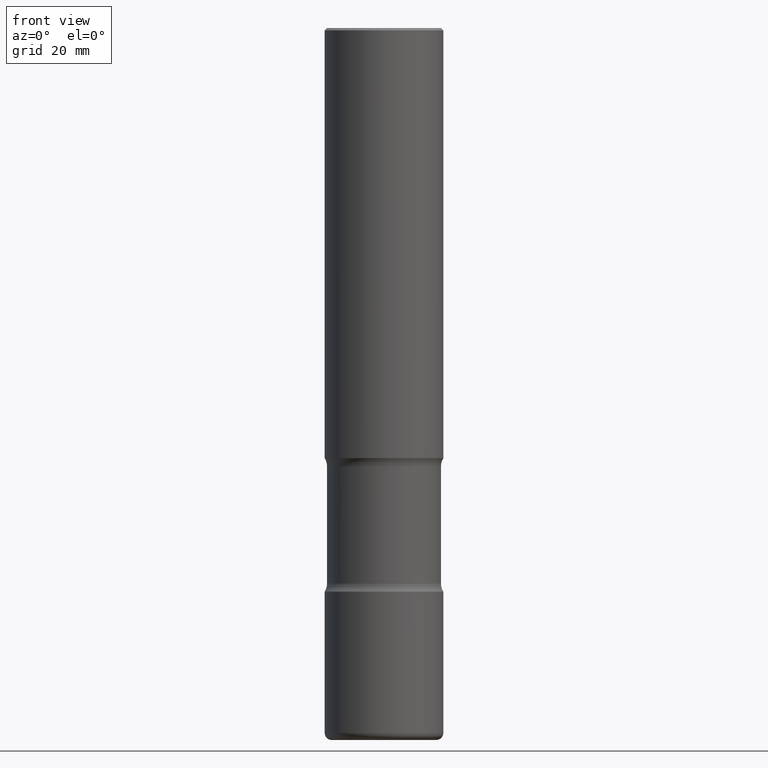
[diagram: clean part render]
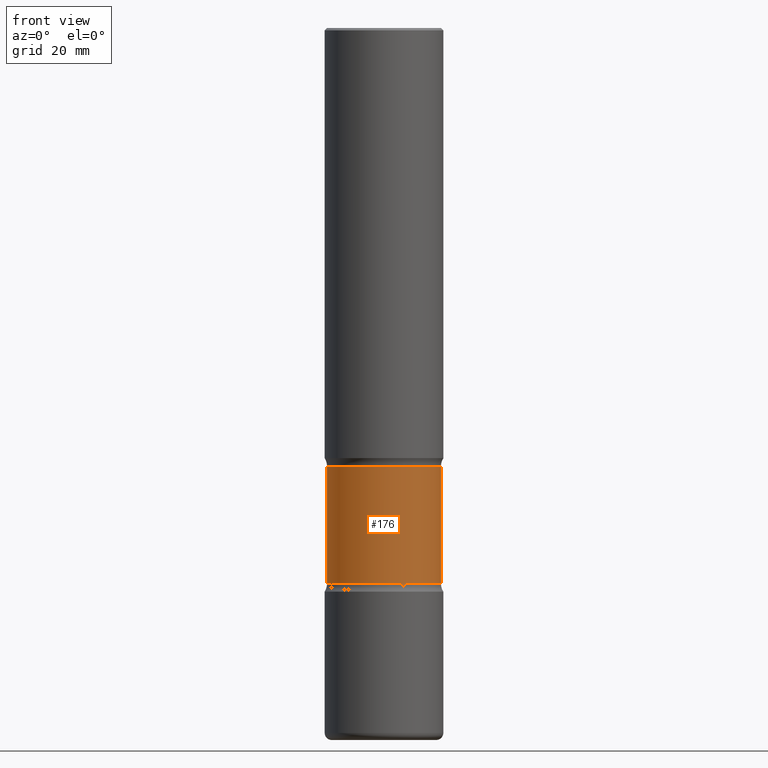
[diagram: same view with one face highlighted and labeled with its STEP entity id]
A machine part, front view. The second image highlights one B-rep face of the part: STEP entity #176.
In plain terms, the highlighted cylindrical surface (partial cylindrical patch) has radius 12.192 mm, axis along (-0, 0, 1).
Its self-contained STEP definition (entity closure, byte-faithful):
#3 = CYLINDRICAL_SURFACE ( 'NONE', #522, 0.4799999999999998712 ) ;
#52 = DIRECTION ( 'NONE',  ( 1.000000000000000000, -6.982962677686266711E-15, 0.000000000000000000 ) ) ;
#81 = VECTOR ( 'NONE', #796, 39.37007874015748143 ) ;
#89 = ORIENTED_EDGE ( 'NONE', *, *, #539, .F. ) ;
#117 = FACE_OUTER_BOUND ( 'NONE', #654, .T. ) ;
#122 = CARTESIAN_POINT ( 'NONE',  ( -0.4799999999999999267, -1.298447506143066159E-14, -4.682176700168747985 ) ) ;
#139 = VERTEX_POINT ( 'NONE', #122 ) ;
#176 = ADVANCED_FACE ( 'NONE', ( #117 ), #3, .T. ) ;
#211 = VERTEX_POINT ( 'NONE', #619 ) ;
#228 = AXIS2_PLACEMENT_3D ( 'NONE', #423, #677, #52 ) ;
#248 = VERTEX_POINT ( 'NONE', #517 ) ;
#304 = CARTESIAN_POINT ( 'NONE',  ( -0.4799999999999998712, -9.246014721657926556E-15, -3.625000000000000888 ) ) ;
#305 = DIRECTION ( 'NONE',  ( -2.445468806185136597E-29, 3.491481338843145583E-15, 1.000000000000000000 ) ) ;
#335 = EDGE_CURVE ( 'NONE', #139, #455, #543, .T. ) ;
#348 = DIRECTION ( 'NONE',  ( 1.000000000000000000, -6.982962677686265133E-15, 0.000000000000000000 ) ) ;
#361 = DIRECTION ( 'NONE',  ( -2.445468806185136597E-29, 3.491481338843145583E-15, 1.000000000000000000 ) ) ;
#388 = ORIENTED_EDGE ( 'NONE', *, *, #413, .T. ) ;
#413 = EDGE_CURVE ( 'NONE', #139, #211, #649, .T. ) ;
#423 = CARTESIAN_POINT ( 'NONE',  ( 9.030684186490993510E-29, -1.289342363900598922E-14, -3.692823299831254236 ) ) ;
#428 = CARTESIAN_POINT ( 'NONE',  ( 8.864824422421122405E-29, -1.265661985330640574E-14, -3.625000000000000888 ) ) ;
#455 = VERTEX_POINT ( 'NONE', #480 ) ;
#457 = EDGE_CURVE ( 'NONE', #211, #248, #496, .T. ) ;
#480 = CARTESIAN_POINT ( 'NONE',  ( -0.4799999999999998157, -9.293362340931705846E-15, -3.692823299831254236 ) ) ;
#496 = LINE ( 'NONE', #751, #81 ) ;
#517 = CARTESIAN_POINT ( 'NONE',  ( 0.4799999999999998157, -1.624524572429539598E-14, -3.692823299831254236 ) ) ;
#522 = AXIS2_PLACEMENT_3D ( 'NONE', #428, #305, #557 ) ;
#539 = EDGE_CURVE ( 'NONE', #455, #248, #735, .T. ) ;
#543 = LINE ( 'NONE', #304, #552 ) ;
#552 = VECTOR ( 'NONE', #615, 39.37007874015748143 ) ;
#553 = CARTESIAN_POINT ( 'NONE',  ( 1.145011706530952997E-28, -1.634773257380536149E-14, -4.682176700168747985 ) ) ;
#557 = DIRECTION ( 'NONE',  ( 1.000000000000000000, -6.982962677686265922E-15, 0.000000000000000000 ) ) ;
#582 = ORIENTED_EDGE ( 'NONE', *, *, #457, .T. ) ;
#615 = DIRECTION ( 'NONE',  ( -2.445468806185136877E-29, 3.491481338843145188E-15, 1.000000000000000000 ) ) ;
#619 = CARTESIAN_POINT ( 'NONE',  ( 0.4799999999999999267, -1.969955465909476825E-14, -4.682176700168747985 ) ) ;
#640 = AXIS2_PLACEMENT_3D ( 'NONE', #553, #361, #348 ) ;
#649 = CIRCLE ( 'NONE', #640, 0.4799999999999999267 ) ;
#654 = EDGE_LOOP ( 'NONE', ( #776, #388, #582, #89 ) ) ;
#677 = DIRECTION ( 'NONE',  ( -2.445468806185136597E-29, 3.491481338843145583E-15, 1.000000000000000000 ) ) ;
#735 = CIRCLE ( 'NONE', #228, 0.4799999999999998157 ) ;
#751 = CARTESIAN_POINT ( 'NONE',  ( 0.4799999999999998712, -1.600844193859581408E-14, -3.625000000000000888 ) ) ;
#776 = ORIENTED_EDGE ( 'NONE', *, *, #335, .F. ) ;
#796 = DIRECTION ( 'NONE',  ( -2.445468806185136877E-29, 3.491481338843145188E-15, 1.000000000000000000 ) ) ;